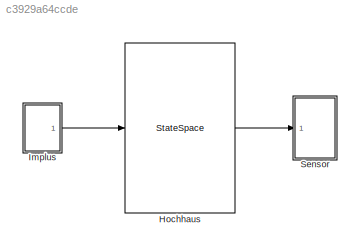
MODEL slx_c3929a64ccde
KIND model
CONFIG AbsTol = auto
CONFIG EnableMultiTasking = off
CONFIG FixedStep = 0.0005
CONFIG MaxStep = 0.0015
CONFIG MinStep = auto
CONFIG RelTol = 1e-3
CONFIG SampleTimeConstraint = Unconstrained
CONFIG Solver = FixedStepAuto
CONFIG SolverName = FixedStepAuto
CONFIG StartTime = 0
CONFIG StopTime = 6
BLOCK [StateSpace] Hochhaus
  A = ssmodal.a
  B = ssmodal.b
  C = ssmodal.c
  D = ssmodal.d
  InitialCondition = 0
  Ports = [1, 1]
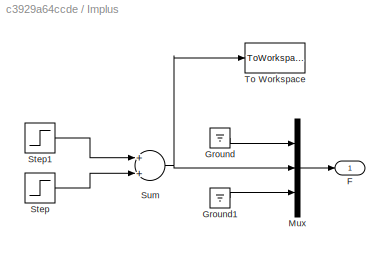
BLOCK [SubSystem] Implus
  Ports = [0, 1]
  RequestExecContextInheritance = off
BLOCK [Outport] Implus/F
  IconDisplay = Port number
  VectorParamsAs1DForOutWhenUnconnected = off
BLOCK [Ground] Implus/Ground
BLOCK [Ground] Implus/Ground1
BLOCK [Mux] Implus/Mux
  DisplayOption = bar
  Inputs = 3
  Ports = [3, 1]
BLOCK [Step] Implus/Step
  After = -1/fs
  SampleTime = 0
  Time = 2/fs
BLOCK [Step] Implus/Step1
  After = 1/fs
  SampleTime = 0
  Time = 1/fs
BLOCK [Sum] Implus/Sum
  InputSameDT = off
  OutDataTypeStr = Inherit: Inherit via internal rule
  Ports = [2, 1]
  SaturateOnIntegerOverflow = off
BLOCK [ToWorkspace] Implus/To Workspace
  FixptAsFi = on
  MaxDataPoints = inf
  Ports = [1]
  SampleTime = -1
  SaveFormat = Timeseries
  VariableName = F
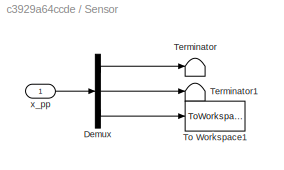
BLOCK [SubSystem] Sensor
  Ports = [1]
  RequestExecContextInheritance = off
BLOCK [Demux] Sensor/Demux
  DisplayOption = bar
  Outputs = 3
  Ports = [1, 3]
BLOCK [Terminator] Sensor/Terminator
BLOCK [Terminator] Sensor/Terminator1
BLOCK [ToWorkspace] Sensor/To Workspace1
  FixptAsFi = on
  MaxDataPoints = inf
  Ports = [1]
  SampleTime = -1
  Save2DSignal = 2-D array (concatenate along first dimension)
  VariableName = xpp
BLOCK [Inport] Sensor/x_pp
  IconDisplay = Port number
LINE Hochhaus:1 -> Sensor:1
LINE Implus/Ground1:1 -> Implus/Mux:3
LINE Implus/Ground:1 -> Implus/Mux:1
LINE Implus/Mux:1 -> Implus/F:1
LINE Implus/Step1:1 -> Implus/Sum:1
LINE Implus/Step:1 -> Implus/Sum:2
NET Implus/Sum:1 -> Implus/Mux:2, Implus/To Workspace:1
LINE Implus:1 -> Hochhaus:1
LINE Sensor/Demux:1 -> Sensor/Terminator:1
LINE Sensor/Demux:2 -> Sensor/Terminator1:1
LINE Sensor/Demux:3 -> Sensor/To Workspace1:1
LINE Sensor/x_pp:1 -> Sensor/Demux:1
note: NET lines group one-source signal fan-out (src -> all destinations, sorted); 1:1 wires keep LINE
